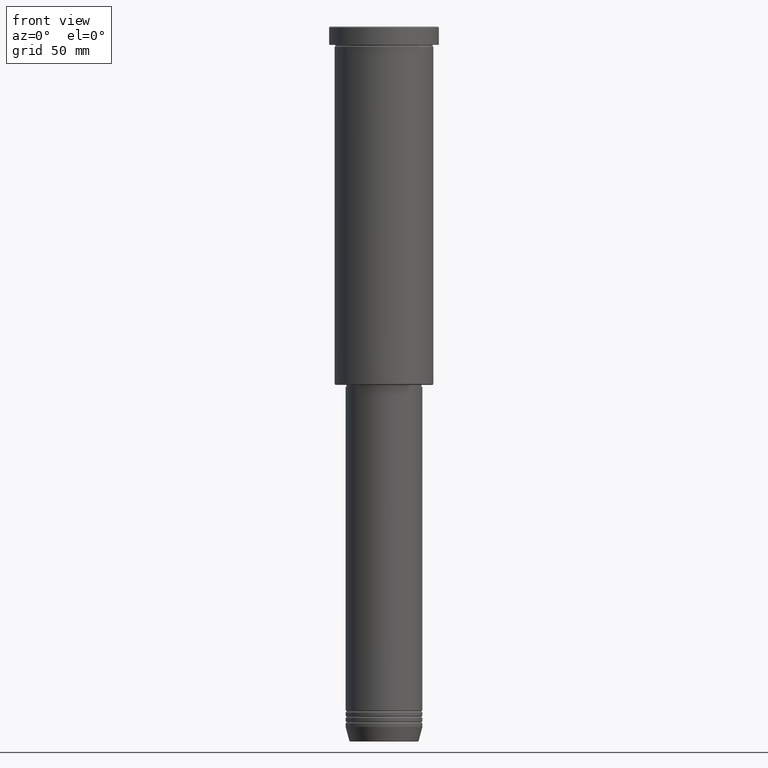
[diagram: clean part render]
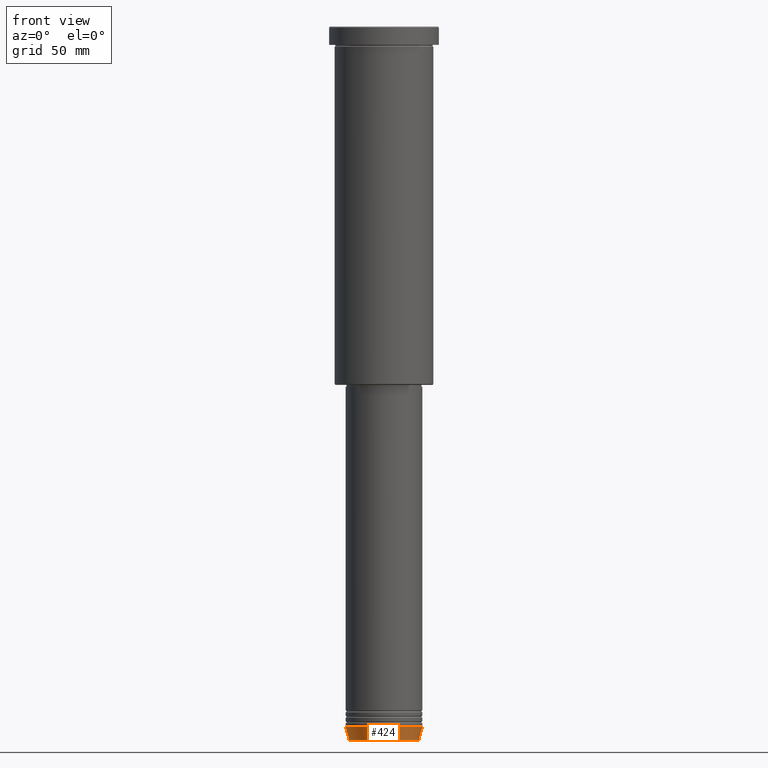
[diagram: same view with one face highlighted and labeled with its STEP entity id]
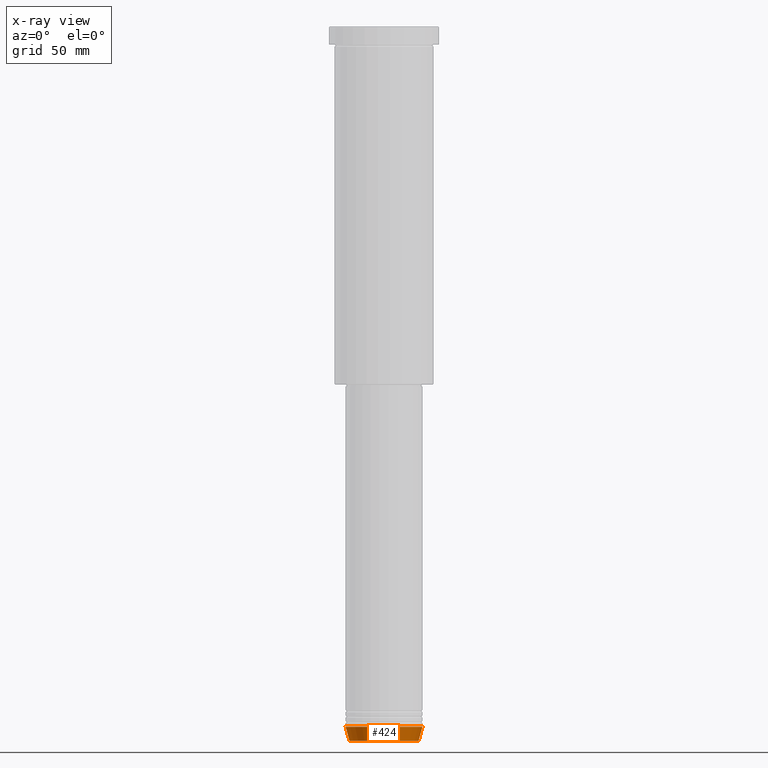
[diagram: x-ray of the same camera — body ghosted, the highlighted face saturated]
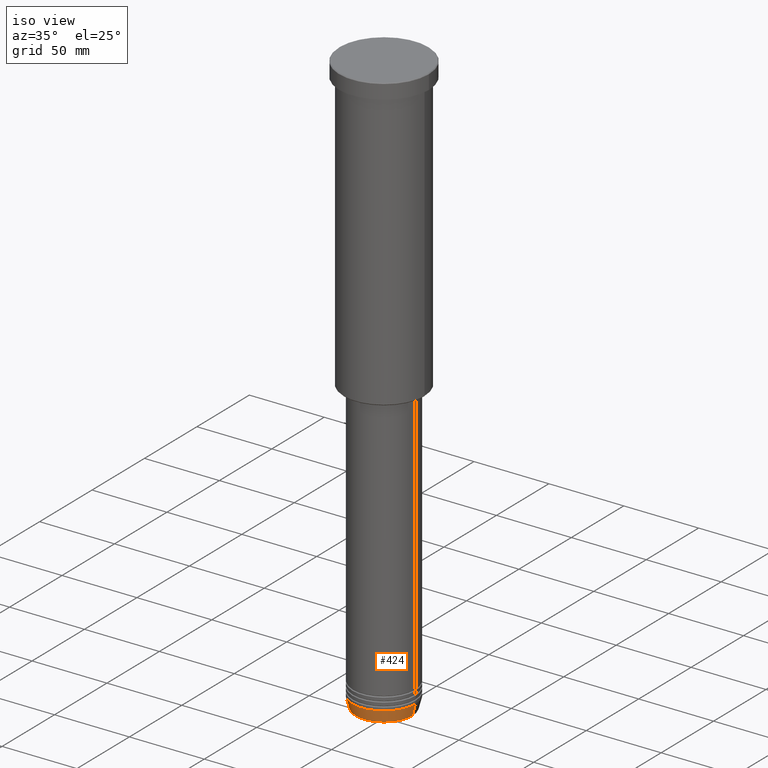
[diagram: same view with one face highlighted and labeled with its STEP entity id]
A machine part, front view. The second image highlights one B-rep face of the part: STEP entity #424.
The next image is the same camera in x-ray: the body ghosted, the highlighted face saturated — about 0% of this face is hidden behind the body in this view.
A second angle (iso view) of the same face is appended — the face is thin or edge-on in the first view.
In plain terms, the highlighted conical surface has half-angle 15 deg.
Its self-contained STEP definition (entity closure, byte-faithful):
#40 = VERTEX_POINT ( 'NONE', #257 ) ;
#47 = AXIS2_PLACEMENT_3D ( 'NONE', #111, #500, #681 ) ;
#111 = CARTESIAN_POINT ( 'NONE',  ( 0.000000000000000000, 0.000000000000000000, -383.0000000000000000 ) ) ;
#122 = ORIENTED_EDGE ( 'NONE', *, *, #812, .T. ) ;
#130 = CIRCLE ( 'NONE', #217, 18.95570587970606624 ) ;
#132 = DIRECTION ( 'NONE',  ( -0.000000000000000000, -0.000000000000000000, 1.000000000000000000 ) ) ;
#135 = CARTESIAN_POINT ( 'NONE',  ( -21.00000000000000000, 2.571758278209441661E-15, -383.0000000000000000 ) ) ;
#147 = LINE ( 'NONE', #135, #222 ) ;
#184 = EDGE_LOOP ( 'NONE', ( #667, #942, #122, #489 ) ) ;
#217 = AXIS2_PLACEMENT_3D ( 'NONE', #710, #415, #1059 ) ;
#222 = VECTOR ( 'NONE', #245, 1000.000000000000114 ) ;
#245 = DIRECTION ( 'NONE',  ( -0.2588190451025212391, 3.169619151431771721E-17, 0.9659258262890680902 ) ) ;
#252 = CARTESIAN_POINT ( 'NONE',  ( 18.95570587970606624, 0.000000000000000000, -390.6294095225512706 ) ) ;
#257 = CARTESIAN_POINT ( 'NONE',  ( 21.00000000000000000, 0.000000000000000000, -383.0000000000000000 ) ) ;
#277 = CIRCLE ( 'NONE', #408, 21.00000000000000000 ) ;
#345 = DIRECTION ( 'NONE',  ( 0.2588190451025212391, 0.000000000000000000, 0.9659258262890680902 ) ) ;
#384 = VERTEX_POINT ( 'NONE', #773 ) ;
#408 = AXIS2_PLACEMENT_3D ( 'NONE', #707, #132, #1056 ) ;
#415 = DIRECTION ( 'NONE',  ( -0.000000000000000000, -0.000000000000000000, 1.000000000000000000 ) ) ;
#424 = ADVANCED_FACE ( 'NONE', ( #593 ), #955, .T. ) ;
#489 = ORIENTED_EDGE ( 'NONE', *, *, #1017, .F. ) ;
#500 = DIRECTION ( 'NONE',  ( -0.000000000000000000, -0.000000000000000000, 1.000000000000000000 ) ) ;
#528 = EDGE_CURVE ( 'NONE', #384, #1012, #147, .T. ) ;
#538 = LINE ( 'NONE', #835, #588 ) ;
#588 = VECTOR ( 'NONE', #345, 1000.000000000000114 ) ;
#593 = FACE_OUTER_BOUND ( 'NONE', #184, .T. ) ;
#617 = EDGE_CURVE ( 'NONE', #384, #820, #130, .T. ) ;
#667 = ORIENTED_EDGE ( 'NONE', *, *, #528, .F. ) ;
#681 = DIRECTION ( 'NONE',  ( 1.000000000000000000, 0.000000000000000000, 0.000000000000000000 ) ) ;
#707 = CARTESIAN_POINT ( 'NONE',  ( 0.000000000000000000, 0.000000000000000000, -383.0000000000000000 ) ) ;
#710 = CARTESIAN_POINT ( 'NONE',  ( 0.000000000000000000, 0.000000000000000000, -390.6294095225512706 ) ) ;
#773 = CARTESIAN_POINT ( 'NONE',  ( -18.95570587970606624, 2.446581365662755730E-15, -390.6294095225512706 ) ) ;
#812 = EDGE_CURVE ( 'NONE', #820, #40, #538, .T. ) ;
#820 = VERTEX_POINT ( 'NONE', #252 ) ;
#835 = CARTESIAN_POINT ( 'NONE',  ( 21.00000000000000000, 0.000000000000000000, -383.0000000000000000 ) ) ;
#885 = CARTESIAN_POINT ( 'NONE',  ( -21.00000000000000000, 2.571758278209441661E-15, -383.0000000000000000 ) ) ;
#942 = ORIENTED_EDGE ( 'NONE', *, *, #617, .T. ) ;
#955 = CONICAL_SURFACE ( 'NONE', #47, 21.00000000000000000, 0.2617993877991499629 ) ;
#1012 = VERTEX_POINT ( 'NONE', #885 ) ;
#1017 = EDGE_CURVE ( 'NONE', #1012, #40, #277, .T. ) ;
#1056 = DIRECTION ( 'NONE',  ( 1.000000000000000000, 0.000000000000000000, 0.000000000000000000 ) ) ;
#1059 = DIRECTION ( 'NONE',  ( 1.000000000000000000, 0.000000000000000000, 0.000000000000000000 ) ) ;